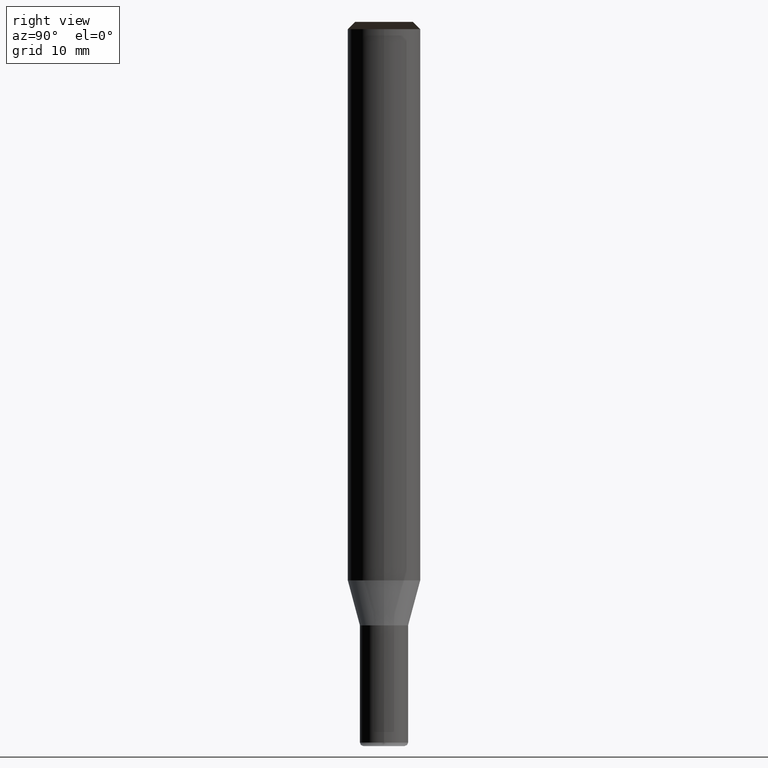
[diagram: clean part render]
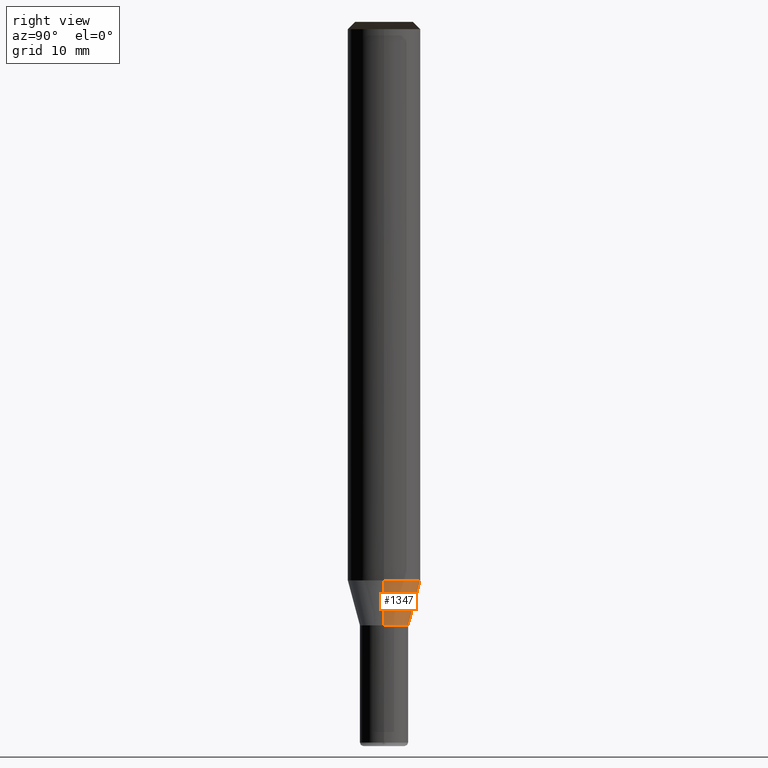
[diagram: same view with one face highlighted and labeled with its STEP entity id]
A machine part, right view. The second image highlights one B-rep face of the part: STEP entity #1347.
In plain terms, the highlighted face is a freeform B-spline surface patch.
Its self-contained STEP definition (entity closure, byte-faithful):
#1106=CARTESIAN_POINT('',(2.0,0.0,-3.732050807569));
#1107=CARTESIAN_POINT('',(2.0,2.0,-3.732050807569));
#1108=CARTESIAN_POINT('',(0.0,2.0,-3.732050807569));
#1109=CARTESIAN_POINT('',(-2.0,2.0,-3.732050807569));
#1110=CARTESIAN_POINT('',(-2.0,0.0,-3.732050807569));
#1130=CARTESIAN_POINT('',(3.0,0.0,0.0));
#1131=CARTESIAN_POINT('',(3.0,3.0,0.0));
#1132=CARTESIAN_POINT('',(0.0,3.0,0.0));
#1133=CARTESIAN_POINT('',(-3.0,3.0,0.0));
#1134=CARTESIAN_POINT('',(-3.0,0.0,0.0));
#1328=(
BOUNDED_SURFACE()
B_SPLINE_SURFACE(1,2,(
(#1106,#1107,#1108,#1109,#1110),
(#1130,#1131,#1132,#1133,#1134)
), .UNSPECIFIED.,.F.,.F.,.F.)
B_SPLINE_SURFACE_WITH_KNOTS((2,2),(3,2,3),(
0.0,1.0),(
0.0,0.5,1.0), .UNSPECIFIED.)
GEOMETRIC_REPRESENTATION_ITEM()
RATIONAL_B_SPLINE_SURFACE(((1.0,0.707106781187,1.0,0.707106781187,1.0),
(1.0,0.707106781187,1.0,0.707106781187,1.0)
))
REPRESENTATION_ITEM('')
SURFACE()
);
#1329=(
BOUNDED_CURVE()
B_SPLINE_CURVE(2,(#1130,#1131,#1132,#1133,#1134),.UNSPECIFIED.,.F.,.F.)
B_SPLINE_CURVE_WITH_KNOTS((3,2,3),
(0.0,0.5,1.0),.UNSPECIFIED.)
CURVE()
GEOMETRIC_REPRESENTATION_ITEM()
RATIONAL_B_SPLINE_CURVE((1.0,0.707106781187,1.0,0.707106781187,1.0))
REPRESENTATION_ITEM('')
);
#1330=(
BOUNDED_CURVE()
B_SPLINE_CURVE(1,(#1134,#1110),.UNSPECIFIED.,.F.,.F.)
B_SPLINE_CURVE_WITH_KNOTS((2,2),
(0.0,1.0),.UNSPECIFIED.)
CURVE()
GEOMETRIC_REPRESENTATION_ITEM()
RATIONAL_B_SPLINE_CURVE((1.0,1.0))
REPRESENTATION_ITEM('')
);
#1331=(
BOUNDED_CURVE()
B_SPLINE_CURVE(2,(#1110,#1109,#1108,#1107,#1106),.UNSPECIFIED.,.F.,.F.)
B_SPLINE_CURVE_WITH_KNOTS((3,2,3),
(0.0,0.5,1.0),.UNSPECIFIED.)
CURVE()
GEOMETRIC_REPRESENTATION_ITEM()
RATIONAL_B_SPLINE_CURVE((1.0,0.707106781187,1.0,0.707106781187,1.0))
REPRESENTATION_ITEM('')
);
#1332=(
BOUNDED_CURVE()
B_SPLINE_CURVE(1,(#1106,#1130),.UNSPECIFIED.,.F.,.F.)
B_SPLINE_CURVE_WITH_KNOTS((2,2),
(0.0,1.0),.UNSPECIFIED.)
CURVE()
GEOMETRIC_REPRESENTATION_ITEM()
RATIONAL_B_SPLINE_CURVE((1.0,1.0))
REPRESENTATION_ITEM('')
);
#1333=VERTEX_POINT('',#1106);
#1334=VERTEX_POINT('',#1110);
#1335=VERTEX_POINT('',#1130);
#1336=VERTEX_POINT('',#1134);
#1337=EDGE_CURVE('',#1335,#1336,#1329,.T.);
#1338=EDGE_CURVE('',#1336,#1334,#1330,.T.);
#1339=EDGE_CURVE('',#1334,#1333,#1331,.T.);
#1340=EDGE_CURVE('',#1333,#1335,#1332,.T.);
#1341=ORIENTED_EDGE('',*,*,#1337,.T.);
#1342=ORIENTED_EDGE('',*,*,#1338,.T.);
#1343=ORIENTED_EDGE('',*,*,#1339,.T.);
#1344=ORIENTED_EDGE('',*,*,#1340,.T.);
#1345=EDGE_LOOP('',(#1341,#1342,#1343,#1344));
#1346=FACE_OUTER_BOUND('',#1345,.T.);
#1347=ADVANCED_FACE('',(#1346),#1328,.T.);